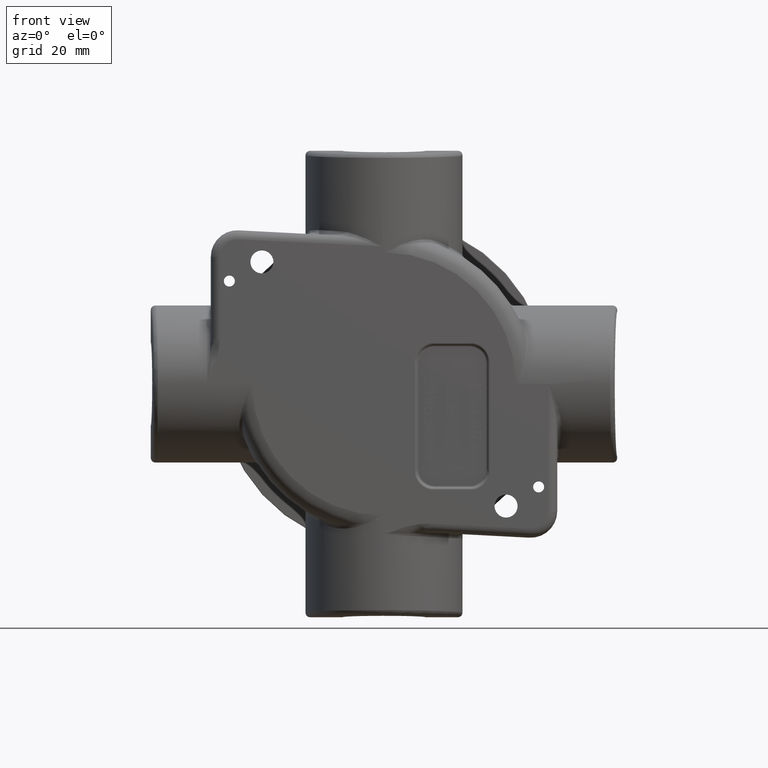
[diagram: clean part render]
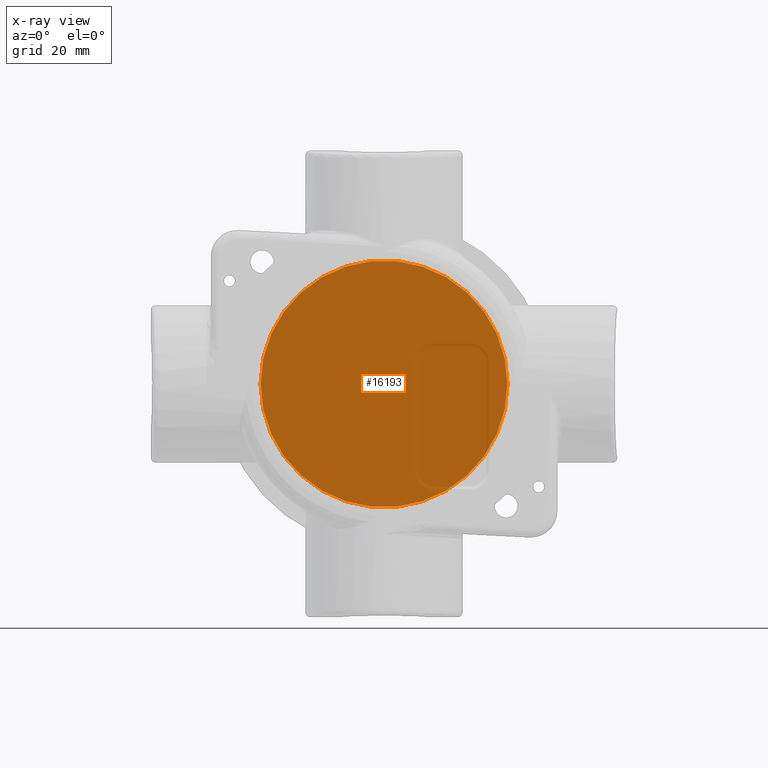
[diagram: x-ray — body ghosted, one internal face saturated and labeled with its STEP entity id]
A machine part, front view, then the same camera in x-ray: the body is ghosted and one INTERNAL B-rep face — a face not visible from any outside direction — is saturated and labeled: STEP entity #16193.
In plain terms, the highlighted planar face has unit normal (-0, 1, 0).
Its self-contained STEP definition (entity closure, byte-faithful):
#609=PLANE('',#17290);
#4259=FACE_OUTER_BOUND('',#5242,.T.);
#5242=EDGE_LOOP('',(#14954,#14955));
#6304=CIRCLE('',#17291,1.72067945491223);
#6305=CIRCLE('',#17292,1.72067945491223);
#7823=VERTEX_POINT('',#61307);
#7824=VERTEX_POINT('',#61308);
#10202=EDGE_CURVE('',#7823,#7824,#6304,.F.);
#10203=EDGE_CURVE('',#7824,#7823,#6305,.F.);
#14954=ORIENTED_EDGE('',*,*,#10202,.T.);
#14955=ORIENTED_EDGE('',*,*,#10203,.T.);
#16193=ADVANCED_FACE('',(#4259),#609,.F.);
#17290=AXIS2_PLACEMENT_3D('',#61306,#20664,#20665);
#17291=AXIS2_PLACEMENT_3D('',#61309,#20666,#20667);
#17292=AXIS2_PLACEMENT_3D('',#61310,#20668,#20669);
#20664=DIRECTION('center_axis',(0.,0.,1.));
#20665=DIRECTION('ref_axis',(1.,0.,0.));
#20666=DIRECTION('center_axis',(0.,0.,1.));
#20667=DIRECTION('ref_axis',(1.,0.,0.));
#20668=DIRECTION('center_axis',(0.,0.,1.));
#20669=DIRECTION('ref_axis',(1.,0.,0.));
#61306=CARTESIAN_POINT('Origin',(0.,0.,1.03125));
#61307=CARTESIAN_POINT('',(1.72067945491223,0.,1.03125));
#61308=CARTESIAN_POINT('',(-1.72067945491223,-2.10722458681688E-16,1.03125));
#61309=CARTESIAN_POINT('Origin',(0.,0.,1.03125));
#61310=CARTESIAN_POINT('Origin',(0.,0.,1.03125));